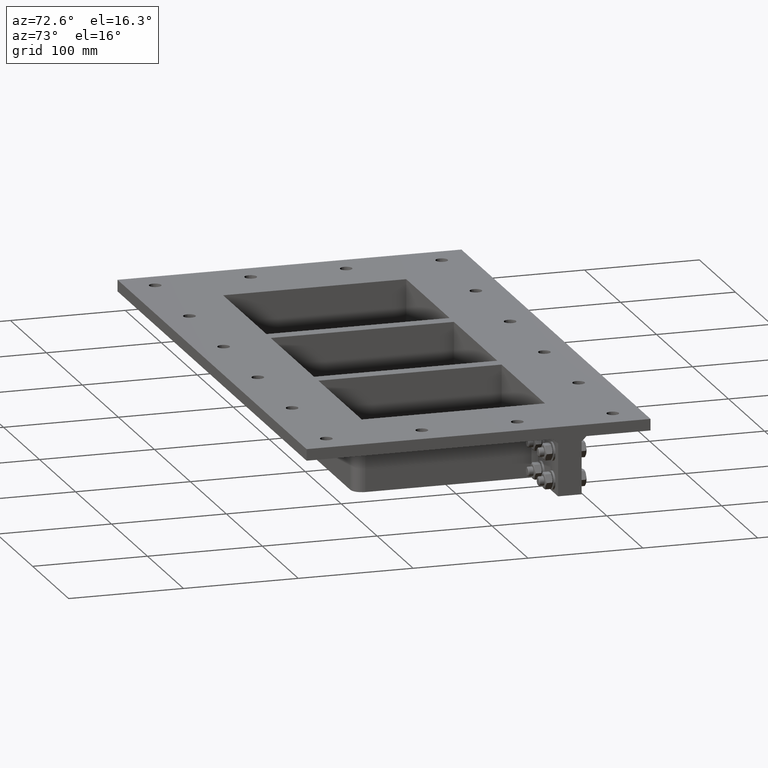
[diagram: clean part render]
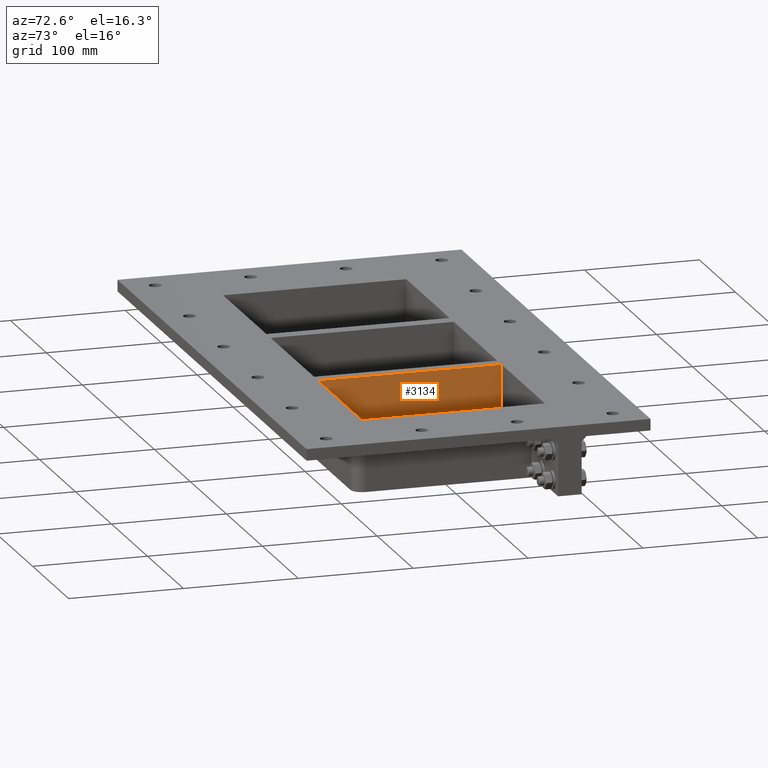
[diagram: same view with one face highlighted and labeled with its STEP entity id]
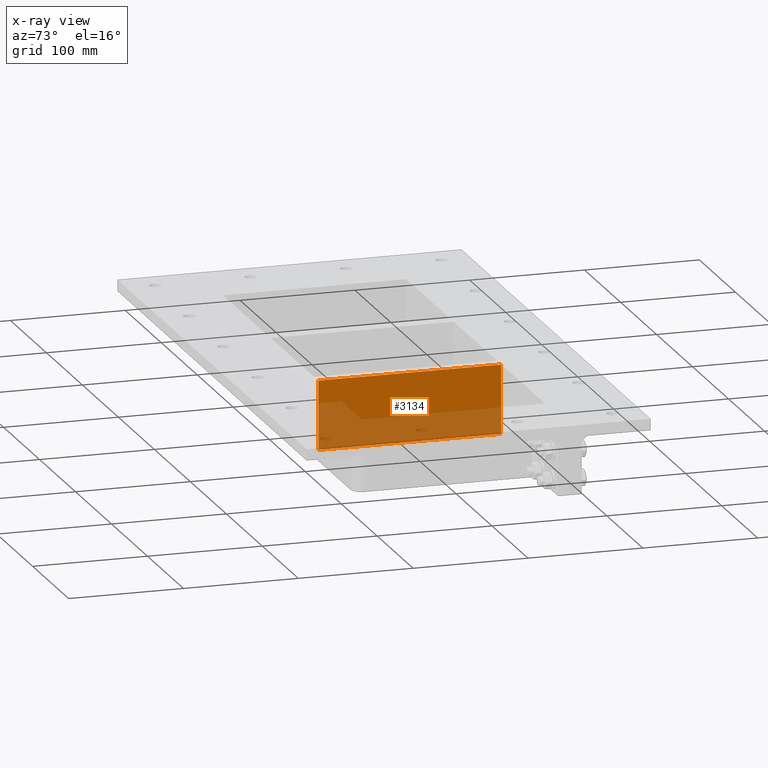
[diagram: x-ray of the same camera — body ghosted, the highlighted face saturated]
A machine part, auxiliary view. The second image highlights one B-rep face of the part: STEP entity #3134.
The next image is the same camera in x-ray: the body ghosted, the highlighted face saturated — about 44% of this face is hidden behind the body in this view.
In plain terms, the highlighted planar face has unit normal (-1, -0, 0).
Its self-contained STEP definition (entity closure, byte-faithful):
#575=FACE_OUTER_BOUND('',#788,.T.);
#788=EDGE_LOOP('',(#2453,#2454,#2455,#2456));
#1034=LINE('',#4978,#1277);
#1049=LINE('',#5010,#1292);
#1061=LINE('',#5051,#1304);
#1080=LINE('',#5089,#1323);
#1277=VECTOR('',#4027,10.);
#1292=VECTOR('',#4050,10.);
#1304=VECTOR('',#4088,10.);
#1323=VECTOR('',#4145,10.);
#1531=VERTEX_POINT('',#4975);
#1532=VERTEX_POINT('',#4977);
#1544=VERTEX_POINT('',#5007);
#1545=VERTEX_POINT('',#5009);
#1831=EDGE_CURVE('',#1531,#1532,#1034,.T.);
#1848=EDGE_CURVE('',#1544,#1545,#1049,.T.);
#1870=EDGE_CURVE('',#1531,#1545,#1061,.T.);
#1889=EDGE_CURVE('',#1544,#1532,#1080,.T.);
#2453=ORIENTED_EDGE('',*,*,#1870,.T.);
#2454=ORIENTED_EDGE('',*,*,#1848,.F.);
#2455=ORIENTED_EDGE('',*,*,#1889,.T.);
#2456=ORIENTED_EDGE('',*,*,#1831,.F.);
#3015=PLANE('',#3573);
#3134=ADVANCED_FACE('',(#575),#3015,.F.);
#3573=AXIS2_PLACEMENT_3D('',#5090,#4146,#4147);
#4027=DIRECTION('',(4.45481339034546E-16,-1.,0.));
#4050=DIRECTION('',(-4.45481339034546E-16,1.,0.));
#4088=DIRECTION('',(0.,0.,1.));
#4145=DIRECTION('',(0.,0.,-1.));
#4146=DIRECTION('center_axis',(-1.,-4.45481339034546E-16,0.));
#4147=DIRECTION('ref_axis',(-4.45481339034546E-16,1.,0.));
#4975=CARTESIAN_POINT('',(72.2499999999999,79.25,-60.));
#4977=CARTESIAN_POINT('',(72.25,-79.75,-60.));
#4978=CARTESIAN_POINT('',(72.25,-39.875,-60.));
#5007=CARTESIAN_POINT('',(72.25,-79.75,0.));
#5009=CARTESIAN_POINT('',(72.2499999999999,79.25,0.));
#5010=CARTESIAN_POINT('',(72.25,-39.875,0.));
#5051=CARTESIAN_POINT('',(72.2499999999999,79.25,0.));
#5089=CARTESIAN_POINT('',(72.25,-79.75,0.));
#5090=CARTESIAN_POINT('Origin',(72.25,-79.75,0.));